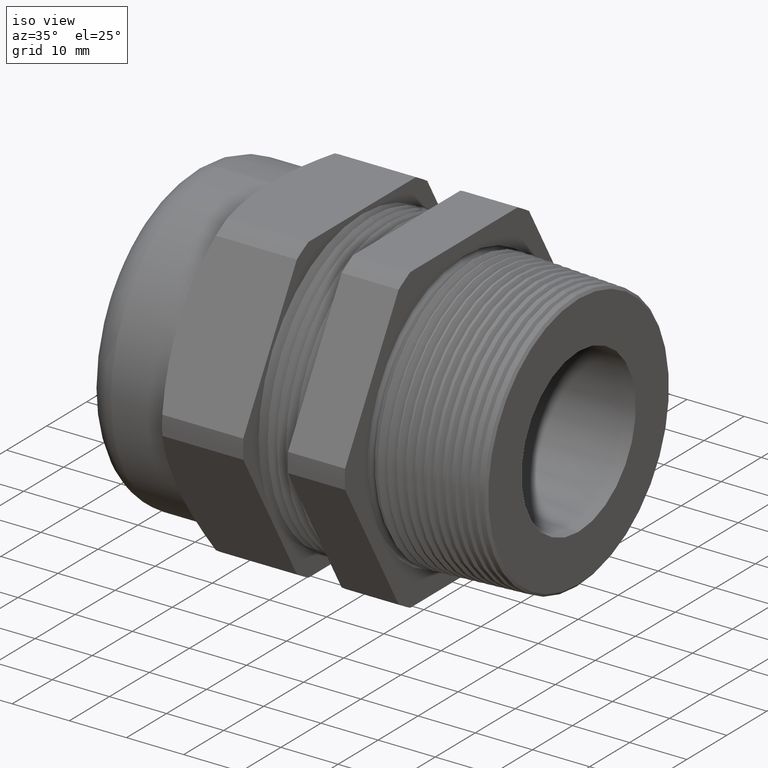
[diagram: clean part render]
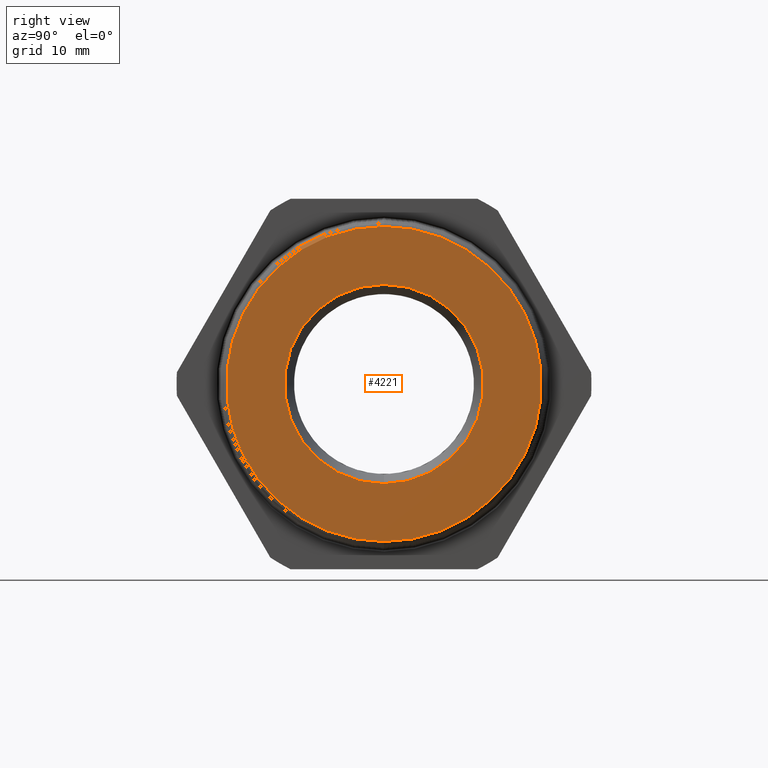
[diagram: tour spotlight — one face highlighted and labeled with its STEP entity id]
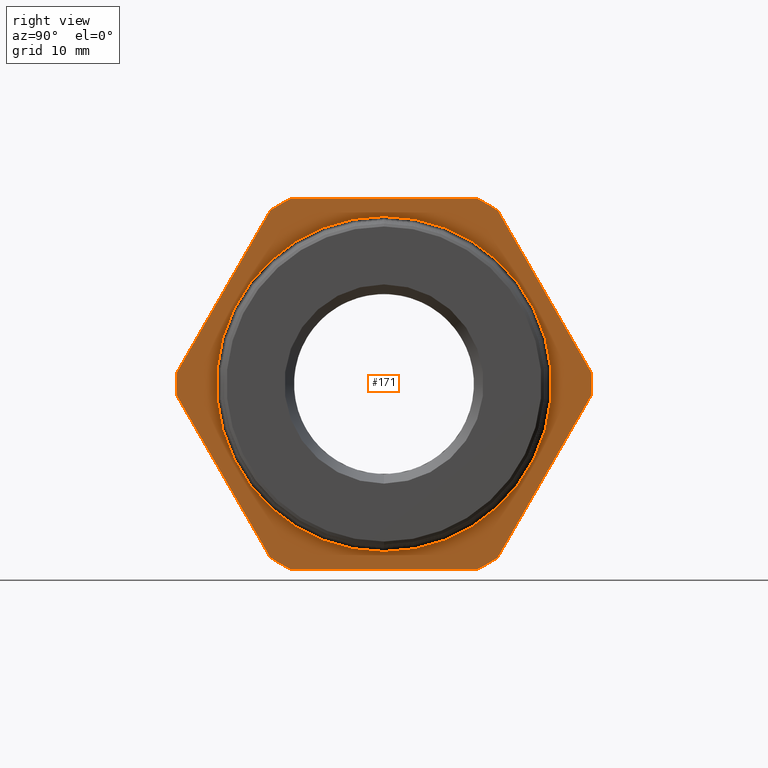
[diagram: tour spotlight — one face highlighted and labeled with its STEP entity id]
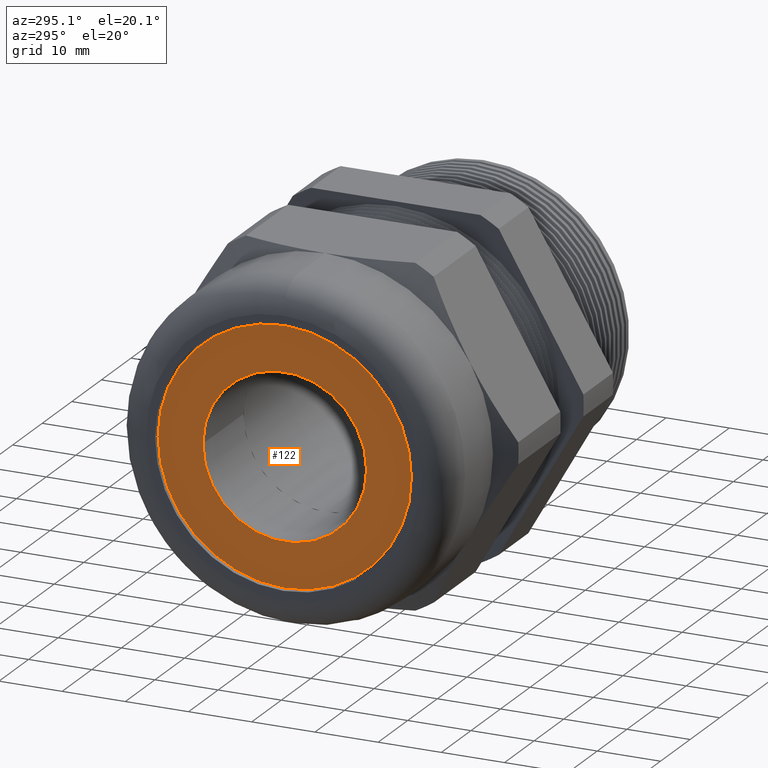
[diagram: tour spotlight — one face highlighted and labeled with its STEP entity id]
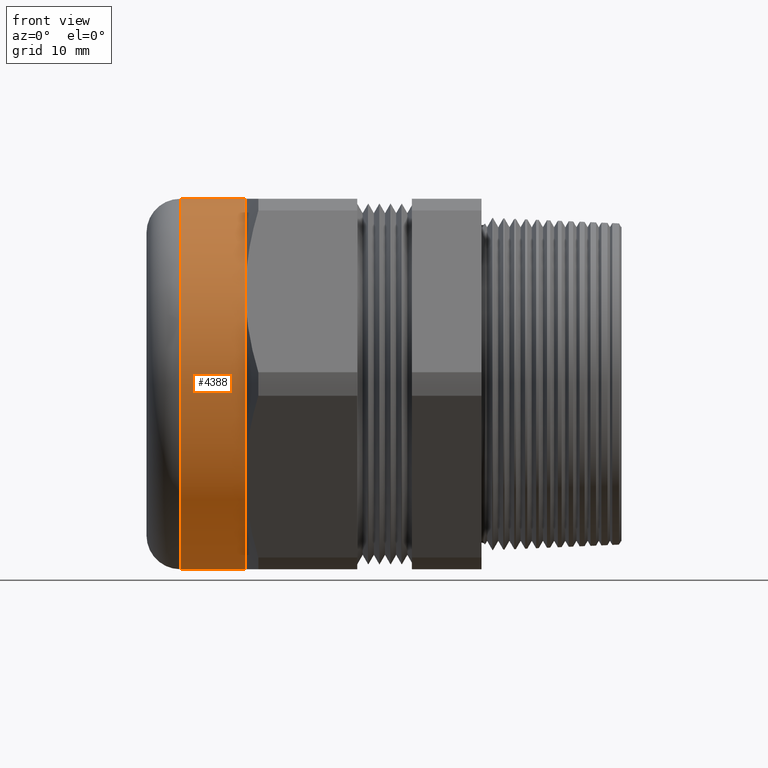
[diagram: tour spotlight — one face highlighted and labeled with its STEP entity id]
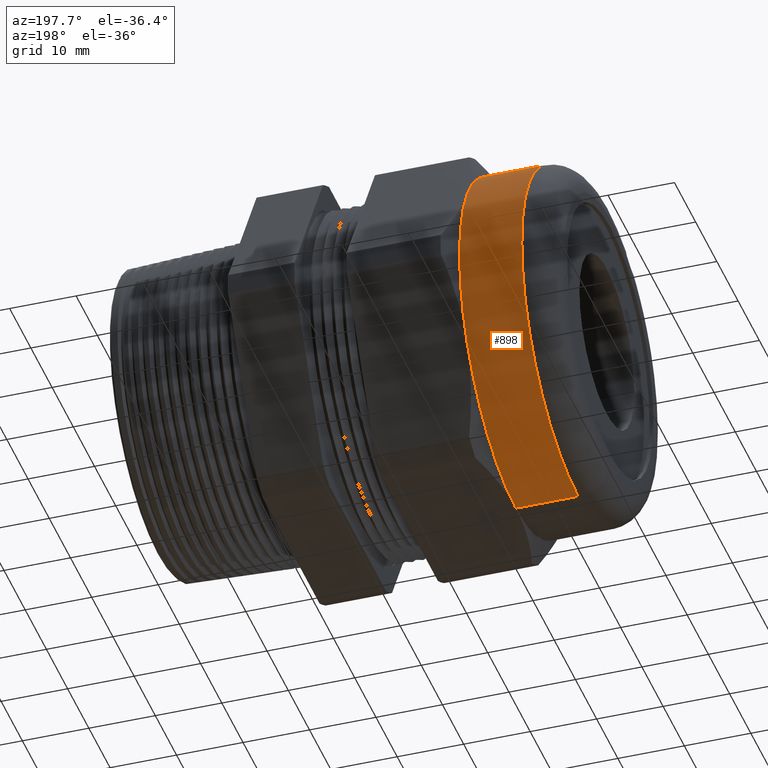
[diagram: tour spotlight — one face highlighted and labeled with its STEP entity id]
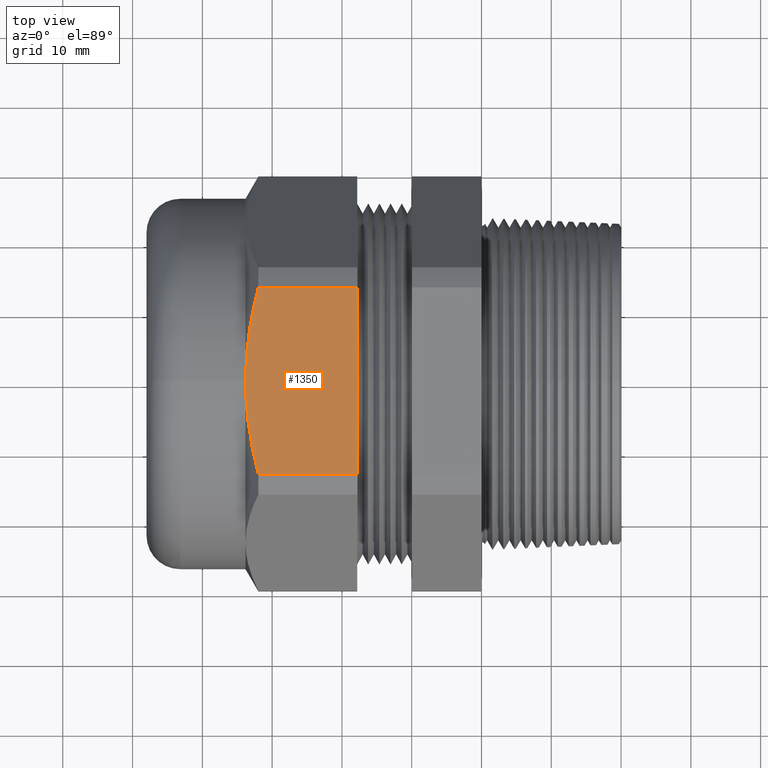
[diagram: tour spotlight — one face highlighted and labeled with its STEP entity id]
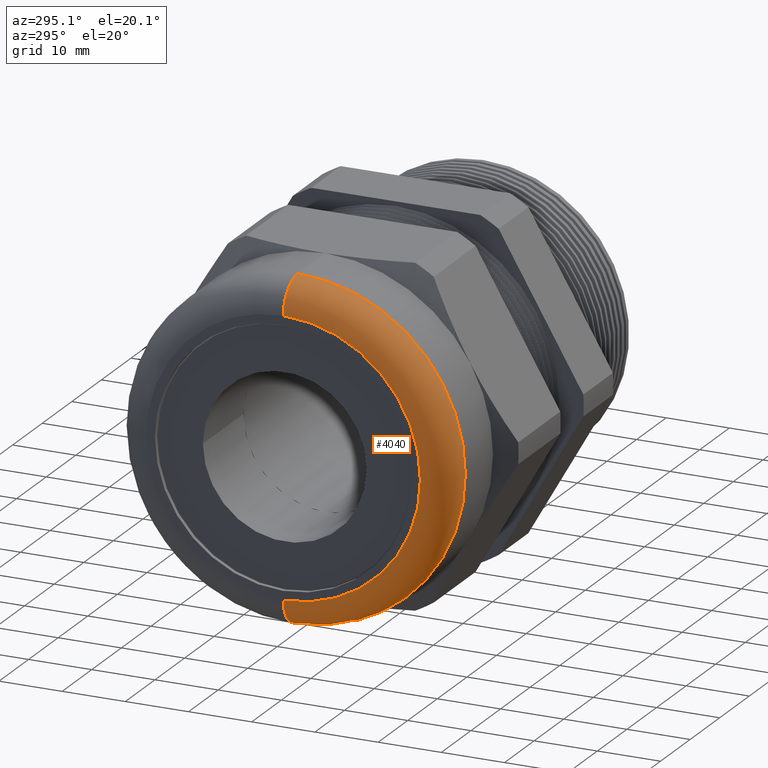
[diagram: tour spotlight — one face highlighted and labeled with its STEP entity id]
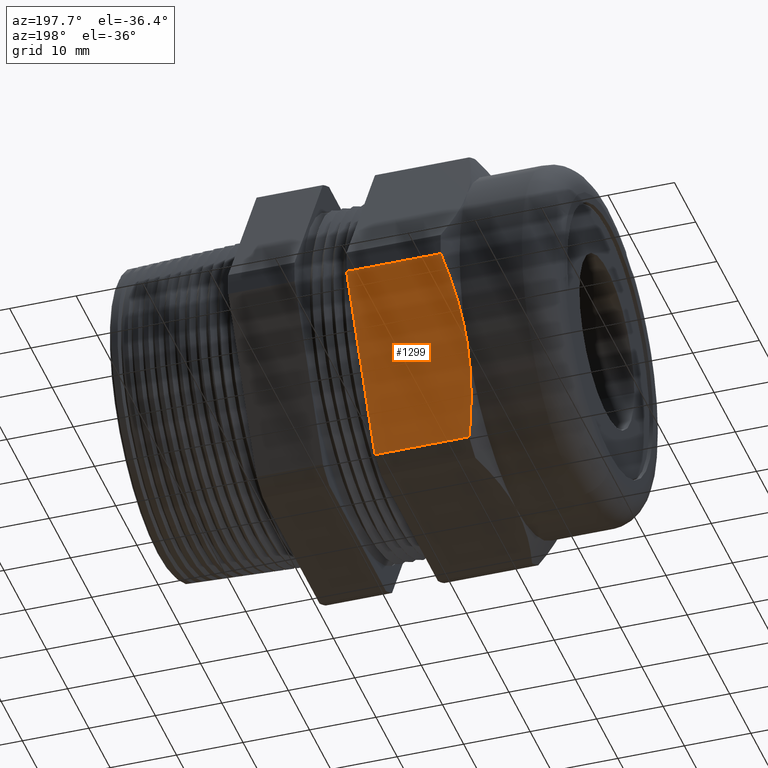
[diagram: tour spotlight — one face highlighted and labeled with its STEP entity id]
A machine part: a face-by-face anatomy tour. The part has 164 B-rep faces; the first image is the clean iso view, then the 8 largest visible faces are spotlighted one at a time (largest first), each with its STEP entity span.

Face 1 — right view, entity #4221. In plain terms, the highlighted planar face has unit normal (-1, 0, 0).
Definition (entity closure, byte-faithful):
#224 = VERTEX_POINT ( 'NONE', #738 ) ;
#226 = EDGE_CURVE ( 'NONE', #227, #224, #737, .T. ) ;
#227 = VERTEX_POINT ( 'NONE', #732 ) ;
#732 = CARTESIAN_POINT ( 'NONE',  ( 0.7899999999999998100, 0.0000000000000000000, -0.5620755975045699200 ) ) ;
#733 = DIRECTION ( 'NONE',  ( 0.0000000000000000000, 0.0000000000000000000, 1.000000000000000000 ) ) ;
#734 = DIRECTION ( 'NONE',  ( -1.000000000000000000, 0.0000000000000000000, 0.0000000000000000000 ) ) ;
#735 = CARTESIAN_POINT ( 'NONE',  ( 0.7899999999999998100, 0.0000000000000000000, 0.0000000000000000000 ) ) ;
#736 = AXIS2_PLACEMENT_3D ( 'NONE', #735, #734, #733 ) ;
#737 = CIRCLE ( 'NONE', #736, 0.5620755975045699200 ) ;
#738 = CARTESIAN_POINT ( 'NONE',  ( 0.7899999999999998100, 6.883440813628075700E-017, 0.5620755975045699200 ) ) ;
#1099 = VERTEX_POINT ( 'NONE', #2047 ) ;
#1101 = EDGE_CURVE ( 'NONE', #1099, #1102, #2046, .T. ) ;
#1102 = VERTEX_POINT ( 'NONE', #2041 ) ;
#1389 = ORIENTED_EDGE ( 'NONE', *, *, #226, .T. ) ;
#1390 = ORIENTED_EDGE ( 'NONE', *, *, #1392, .T. ) ;
#1392 = EDGE_CURVE ( 'NONE', #224, #227, #2731, .T. ) ;
#1457 = ORIENTED_EDGE ( 'NONE', *, *, #1101, .F. ) ;
#1458 = ORIENTED_EDGE ( 'NONE', *, *, #1460, .F. ) ;
#1459 = EDGE_LOOP ( 'NONE', ( #1458, #1457 ) ) ;
#1460 = EDGE_CURVE ( 'NONE', #1102, #1099, #2856, .T. ) ;
#2041 = CARTESIAN_POINT ( 'NONE',  ( 0.7900000000000000400, 0.0000000000000000000, -0.8886206974589371300 ) ) ;
#2042 = DIRECTION ( 'NONE',  ( 0.0000000000000000000, 0.0000000000000000000, 1.000000000000000000 ) ) ;
#2043 = DIRECTION ( 'NONE',  ( -1.000000000000000000, 0.0000000000000000000, 0.0000000000000000000 ) ) ;
#2044 = CARTESIAN_POINT ( 'NONE',  ( 0.7900000000000000400, 0.0000000000000000000, 0.0000000000000000000 ) ) ;
#2045 = AXIS2_PLACEMENT_3D ( 'NONE', #2044, #2043, #2042 ) ;
#2046 = CIRCLE ( 'NONE', #2045, 0.8886206974589371300 ) ;
#2047 = CARTESIAN_POINT ( 'NONE',  ( 0.7900000000000000400, 1.088246492799175700E-016, 0.8886206974589371300 ) ) ;
#2671 = CARTESIAN_POINT ( 'NONE',  ( 0.7899999999999998100, 0.0000000000000000000, 0.0000000000000000000 ) ) ;
#2728 = DIRECTION ( 'NONE',  ( 0.0000000000000000000, 0.0000000000000000000, 1.000000000000000000 ) ) ;
#2729 = DIRECTION ( 'NONE',  ( -1.000000000000000000, 0.0000000000000000000, 0.0000000000000000000 ) ) ;
#2730 = AXIS2_PLACEMENT_3D ( 'NONE', #2671, #2729, #2728 ) ;
#2731 = CIRCLE ( 'NONE', #2730, 0.5620755975045699200 ) ;
#2852 = DIRECTION ( 'NONE',  ( 0.0000000000000000000, 0.0000000000000000000, 1.000000000000000000 ) ) ;
#2853 = DIRECTION ( 'NONE',  ( -1.000000000000000000, 0.0000000000000000000, 0.0000000000000000000 ) ) ;
#2854 = CARTESIAN_POINT ( 'NONE',  ( 0.7900000000000000400, 0.0000000000000000000, 0.0000000000000000000 ) ) ;
#2855 = AXIS2_PLACEMENT_3D ( 'NONE', #2854, #2853, #2852 ) ;
#2856 = CIRCLE ( 'NONE', #2855, 0.8886206974589371300 ) ;
#3466 = DIRECTION ( 'NONE',  ( 0.0000000000000000000, 0.0000000000000000000, 1.000000000000000000 ) ) ;
#3467 = DIRECTION ( 'NONE',  ( -1.000000000000000000, 0.0000000000000000000, 0.0000000000000000000 ) ) ;
#3468 = CARTESIAN_POINT ( 'NONE',  ( 0.7900000000000000400, 0.9055078551022752700, 0.0000000000000000000 ) ) ;
#3469 = AXIS2_PLACEMENT_3D ( 'NONE', #3468, #3467, #3466 ) ;
#3470 = PLANE ( 'NONE',  #3469 ) ;
#3471 = FACE_OUTER_BOUND ( 'NONE', #1459, .T. ) ;
#3472 = FACE_BOUND ( 'NONE', #4222, .T. ) ;
#4221 = ADVANCED_FACE ( 'NONE', ( #3472, #3471 ), #3470, .F. ) ;
#4222 = EDGE_LOOP ( 'NONE', ( #1389, #1390 ) ) ;

Face 2 — right view, entity #171. In plain terms, the highlighted planar face has unit normal (-1, 0, 0).
Definition (entity closure, byte-faithful):
#156 = ORIENTED_EDGE ( 'NONE', *, *, #160, .T. ) ;
#160 = EDGE_CURVE ( 'NONE', #163, #4138, #611, .T. ) ;
#161 = EDGE_LOOP ( 'NONE', ( #156, #4142, #4133, #4119, #4111, #4162, #4169, #4171, #4151, #4145, #4203, #4188 ) ) ;
#163 = VERTEX_POINT ( 'NONE', #601 ) ;
#171 = ADVANCED_FACE ( 'NONE', ( #655, #654 ), #653, .F. ) ;
#601 = CARTESIAN_POINT ( 'NONE',  ( 0.0000000000000000000, -1.168535519404734900, -0.06603710994211120500 ) ) ;
#608 = DIRECTION ( 'NONE',  ( 0.0000000000000000000, 0.5000000000000001100, -0.8660254037844386000 ) ) ;
#609 = VECTOR ( 'NONE', #608, 39.37007874015748900 ) ;
#610 = CARTESIAN_POINT ( 'NONE',  ( 0.0000000000000000000, -1.168535519404734900, -0.06603710994211120500 ) ) ;
#611 = LINE ( 'NONE', #610, #609 ) ;
#649 = DIRECTION ( 'NONE',  ( 0.0000000000000000000, 0.0000000000000000000, 1.000000000000000000 ) ) ;
#650 = DIRECTION ( 'NONE',  ( -1.000000000000000000, 0.0000000000000000000, 0.0000000000000000000 ) ) ;
#651 = CARTESIAN_POINT ( 'NONE',  ( 0.0000000000000000000, 1.170400000000000100, 0.0000000000000000000 ) ) ;
#652 = AXIS2_PLACEMENT_3D ( 'NONE', #651, #650, #649 ) ;
#653 = PLANE ( 'NONE',  #652 ) ;
#654 = FACE_BOUND ( 'NONE', #4176, .T. ) ;
#655 = FACE_OUTER_BOUND ( 'NONE', #161, .T. ) ;
#1089 = VERTEX_POINT ( 'NONE', #2011 ) ;
#1095 = VERTEX_POINT ( 'NONE', #2052 ) ;
#1114 = EDGE_CURVE ( 'NONE', #1095, #1089, #2087, .T. ) ;
#2011 = CARTESIAN_POINT ( 'NONE',  ( 0.0000000000000000000, 0.0000000000000000000, -0.9449999999999997300 ) ) ;
#2052 = CARTESIAN_POINT ( 'NONE',  ( 0.0000000000000000000, 1.157291225194248600E-016, 0.9449999999999997300 ) ) ;
#2083 = DIRECTION ( 'NONE',  ( 0.0000000000000000000, 0.0000000000000000000, 1.000000000000000000 ) ) ;
#2084 = DIRECTION ( 'NONE',  ( 1.000000000000000000, 0.0000000000000000000, 0.0000000000000000000 ) ) ;
#2085 = CARTESIAN_POINT ( 'NONE',  ( 0.0000000000000000000, 0.0000000000000000000, 0.0000000000000000000 ) ) ;
#2086 = AXIS2_PLACEMENT_3D ( 'NONE', #2085, #2084, #2083 ) ;
#2087 = CIRCLE ( 'NONE', #2086, 0.9449999999999997300 ) ;
#3252 = AXIS2_PLACEMENT_3D ( 'NONE', #3259, #3317, #3316 ) ;
#3253 = CIRCLE ( 'NONE', #3252, 1.170400000000000100 ) ;
#3259 = CARTESIAN_POINT ( 'NONE',  ( 0.0000000000000000000, 0.0000000000000000000, 0.0000000000000000000 ) ) ;
#3261 = DIRECTION ( 'NONE',  ( 0.0000000000000000000, 0.4999999999999998300, 0.8660254037844386000 ) ) ;
#3263 = VECTOR ( 'NONE', #3261, 39.37007874015748900 ) ;
#3264 = CARTESIAN_POINT ( 'NONE',  ( 0.0000000000000000000, 0.6414575745047416100, -0.9789628900578888300 ) ) ;
#3265 = LINE ( 'NONE', #3264, #3263 ) ;
#3272 = CARTESIAN_POINT ( 'NONE',  ( 0.0000000000000000000, 0.6414575745047416100, -0.9789628900578888300 ) ) ;
#3277 = CARTESIAN_POINT ( 'NONE',  ( 0.0000000000000000000, 1.168535519404735100, -0.06603710994211078900 ) ) ;
#3288 = CARTESIAN_POINT ( 'NONE',  ( 0.0000000000000000000, -0.6414575745047412800, -0.9789628900578889500 ) ) ;
#3289 = DIRECTION ( 'NONE',  ( 0.0000000000000000000, 0.0000000000000000000, 1.000000000000000000 ) ) ;
#3290 = DIRECTION ( 'NONE',  ( -1.000000000000000000, 0.0000000000000000000, 0.0000000000000000000 ) ) ;
#3291 = CARTESIAN_POINT ( 'NONE',  ( 0.0000000000000000000, 0.0000000000000000000, 0.0000000000000000000 ) ) ;
#3292 = AXIS2_PLACEMENT_3D ( 'NONE', #3291, #3290, #3289 ) ;
#3293 = CIRCLE ( 'NONE', #3292, 1.170400000000000100 ) ;
#3294 = DIRECTION ( 'NONE',  ( 0.0000000000000000000, 0.0000000000000000000, 1.000000000000000000 ) ) ;
#3295 = DIRECTION ( 'NONE',  ( -1.000000000000000000, 0.0000000000000000000, 0.0000000000000000000 ) ) ;
#3296 = CARTESIAN_POINT ( 'NONE',  ( 0.0000000000000000000, 0.0000000000000000000, 0.0000000000000000000 ) ) ;
#3297 = AXIS2_PLACEMENT_3D ( 'NONE', #3296, #3295, #3294 ) ;
#3298 = CIRCLE ( 'NONE', #3297, 1.170400000000000100 ) ;
#3299 = CARTESIAN_POINT ( 'NONE',  ( 0.0000000000000000000, -0.5270779448999944900, -1.044999999999999300 ) ) ;
#3311 = CARTESIAN_POINT ( 'NONE',  ( 0.0000000000000000000, 0.5270779448999938200, -1.044999999999999700 ) ) ;
#3312 = DIRECTION ( 'NONE',  ( 0.0000000000000000000, 1.000000000000000000, 0.0000000000000000000 ) ) ;
#3313 = VECTOR ( 'NONE', #3312, 39.37007874015748100 ) ;
#3314 = CARTESIAN_POINT ( 'NONE',  ( 0.0000000000000000000, -0.5270779448999938200, -1.044999999999999700 ) ) ;
#3315 = LINE ( 'NONE', #3314, #3313 ) ;
#3316 = DIRECTION ( 'NONE',  ( 0.0000000000000000000, 0.0000000000000000000, 1.000000000000000000 ) ) ;
#3317 = DIRECTION ( 'NONE',  ( -1.000000000000000000, 0.0000000000000000000, 0.0000000000000000000 ) ) ;
#3318 = DIRECTION ( 'NONE',  ( -1.000000000000000000, 0.0000000000000000000, 0.0000000000000000000 ) ) ;
#3319 = AXIS2_PLACEMENT_3D ( 'NONE', #3325, #3318, #3382 ) ;
#3320 = CIRCLE ( 'NONE', #3319, 1.170400000000000100 ) ;
#3325 = CARTESIAN_POINT ( 'NONE',  ( 0.0000000000000000000, 0.0000000000000000000, 0.0000000000000000000 ) ) ;
#3329 = DIRECTION ( 'NONE',  ( 0.0000000000000000000, 0.0000000000000000000, 1.000000000000000000 ) ) ;
#3330 = DIRECTION ( 'NONE',  ( 1.000000000000000000, 0.0000000000000000000, 0.0000000000000000000 ) ) ;
#3331 = CARTESIAN_POINT ( 'NONE',  ( 0.0000000000000000000, 0.0000000000000000000, 0.0000000000000000000 ) ) ;
#3332 = AXIS2_PLACEMENT_3D ( 'NONE', #3331, #3330, #3329 ) ;
#3333 = CIRCLE ( 'NONE', #3332, 0.9449999999999997300 ) ;
#3334 = DIRECTION ( 'NONE',  ( 0.0000000000000000000, -1.000000000000000000, 0.0000000000000000000 ) ) ;
#3335 = VECTOR ( 'NONE', #3334, 39.37007874015748100 ) ;
#3336 = CARTESIAN_POINT ( 'NONE',  ( 0.0000000000000000000, 0.5270779448999936000, 1.044999999999999900 ) ) ;
#3337 = LINE ( 'NONE', #3336, #3335 ) ;
#3343 = CARTESIAN_POINT ( 'NONE',  ( 0.0000000000000000000, -0.5270779448999936000, 1.044999999999999900 ) ) ;
#3344 = CARTESIAN_POINT ( 'NONE',  ( 0.0000000000000000000, -0.6414575745047412800, 0.9789628900578891700 ) ) ;
#3349 = CARTESIAN_POINT ( 'NONE',  ( 0.0000000000000000000, -1.168535519404734900, 0.06603710994211099700 ) ) ;
#3354 = DIRECTION ( 'NONE',  ( 0.0000000000000000000, 0.0000000000000000000, 1.000000000000000000 ) ) ;
#3355 = DIRECTION ( 'NONE',  ( -1.000000000000000000, 0.0000000000000000000, 0.0000000000000000000 ) ) ;
#3356 = CARTESIAN_POINT ( 'NONE',  ( 0.0000000000000000000, 0.0000000000000000000, 0.0000000000000000000 ) ) ;
#3357 = AXIS2_PLACEMENT_3D ( 'NONE', #3356, #3355, #3354 ) ;
#3362 = CIRCLE ( 'NONE', #3357, 1.170400000000000100 ) ;
#3365 = CARTESIAN_POINT ( 'NONE',  ( 0.0000000000000000000, 0.5270779448999933800, 1.044999999999999900 ) ) ;
#3366 = CARTESIAN_POINT ( 'NONE',  ( 0.0000000000000000000, 0.6414575745047415000, 0.9789628900578888300 ) ) ;
#3367 = DIRECTION ( 'NONE',  ( 0.0000000000000000000, -0.5000000000000000000, 0.8660254037844386000 ) ) ;
#3368 = VECTOR ( 'NONE', #3367, 39.37007874015748900 ) ;
#3369 = CARTESIAN_POINT ( 'NONE',  ( 0.0000000000000000000, 1.168535519404734900, 0.06603710994211099700 ) ) ;
#3370 = LINE ( 'NONE', #3369, #3368 ) ;
#3372 = DIRECTION ( 'NONE',  ( 0.0000000000000000000, 0.0000000000000000000, 1.000000000000000000 ) ) ;
#3373 = DIRECTION ( 'NONE',  ( -1.000000000000000000, 0.0000000000000000000, 0.0000000000000000000 ) ) ;
#3374 = CARTESIAN_POINT ( 'NONE',  ( 0.0000000000000000000, 0.0000000000000000000, 0.0000000000000000000 ) ) ;
#3375 = AXIS2_PLACEMENT_3D ( 'NONE', #3374, #3373, #3372 ) ;
#3376 = CIRCLE ( 'NONE', #3375, 1.170400000000000100 ) ;
#3382 = DIRECTION ( 'NONE',  ( 0.0000000000000000000, 0.0000000000000000000, 1.000000000000000000 ) ) ;
#3437 = DIRECTION ( 'NONE',  ( 0.0000000000000000000, -0.5000000000000000000, -0.8660254037844386000 ) ) ;
#3438 = VECTOR ( 'NONE', #3437, 39.37007874015748900 ) ;
#3439 = CARTESIAN_POINT ( 'NONE',  ( 0.0000000000000000000, -0.6414575745047415000, 0.9789628900578888300 ) ) ;
#3440 = LINE ( 'NONE', #3439, #3438 ) ;
#3516 = CARTESIAN_POINT ( 'NONE',  ( 0.0000000000000000000, 1.168535519404735100, 0.06603710994211087200 ) ) ;
#4106 = VERTEX_POINT ( 'NONE', #3277 ) ;
#4108 = VERTEX_POINT ( 'NONE', #3272 ) ;
#4111 = ORIENTED_EDGE ( 'NONE', *, *, #4115, .T. ) ;
#4115 = EDGE_CURVE ( 'NONE', #4108, #4106, #3265, .T. ) ;
#4119 = ORIENTED_EDGE ( 'NONE', *, *, #4123, .F. ) ;
#4123 = EDGE_CURVE ( 'NONE', #4108, #4125, #3253, .T. ) ;
#4124 = EDGE_CURVE ( 'NONE', #4128, #4125, #3315, .T. ) ;
#4125 = VERTEX_POINT ( 'NONE', #3311 ) ;
#4128 = VERTEX_POINT ( 'NONE', #3299 ) ;
#4133 = ORIENTED_EDGE ( 'NONE', *, *, #4124, .T. ) ;
#4134 = EDGE_CURVE ( 'NONE', #4141, #4143, #3298, .T. ) ;
#4137 = EDGE_CURVE ( 'NONE', #4128, #4138, #3293, .T. ) ;
#4138 = VERTEX_POINT ( 'NONE', #3288 ) ;
#4140 = VERTEX_POINT ( 'NONE', #3349 ) ;
#4141 = VERTEX_POINT ( 'NONE', #3344 ) ;
#4142 = ORIENTED_EDGE ( 'NONE', *, *, #4137, .F. ) ;
#4143 = VERTEX_POINT ( 'NONE', #3343 ) ;
#4145 = ORIENTED_EDGE ( 'NONE', *, *, #4134, .F. ) ;
#4148 = EDGE_CURVE ( 'NONE', #4173, #4143, #3337, .T. ) ;
#4151 = ORIENTED_EDGE ( 'NONE', *, *, #4148, .T. ) ;
#4157 = EDGE_CURVE ( 'NONE', #1089, #1095, #3333, .T. ) ;
#4160 = ORIENTED_EDGE ( 'NONE', *, *, #1114, .F. ) ;
#4162 = ORIENTED_EDGE ( 'NONE', *, *, #4164, .F. ) ;
#4164 = EDGE_CURVE ( 'NONE', #4271, #4106, #3320, .T. ) ;
#4166 = EDGE_CURVE ( 'NONE', #4173, #4170, #3376, .T. ) ;
#4168 = EDGE_CURVE ( 'NONE', #4271, #4170, #3370, .T. ) ;
#4169 = ORIENTED_EDGE ( 'NONE', *, *, #4168, .T. ) ;
#4170 = VERTEX_POINT ( 'NONE', #3366 ) ;
#4171 = ORIENTED_EDGE ( 'NONE', *, *, #4166, .F. ) ;
#4172 = ORIENTED_EDGE ( 'NONE', *, *, #4157, .F. ) ;
#4173 = VERTEX_POINT ( 'NONE', #3365 ) ;
#4176 = EDGE_LOOP ( 'NONE', ( #4172, #4160 ) ) ;
#4184 = EDGE_CURVE ( 'NONE', #163, #4140, #3362, .T. ) ;
#4188 = ORIENTED_EDGE ( 'NONE', *, *, #4184, .F. ) ;
#4203 = ORIENTED_EDGE ( 'NONE', *, *, #4206, .T. ) ;
#4206 = EDGE_CURVE ( 'NONE', #4141, #4140, #3440, .T. ) ;
#4271 = VERTEX_POINT ( 'NONE', #3516 ) ;

Face 3 — auxiliary view, entity #122. In plain terms, the highlighted planar face has unit normal (-1, -0, 0).
Definition (entity closure, byte-faithful):
#2 = VERTEX_POINT ( 'NONE', #906 ) ;
#3 = VERTEX_POINT ( 'NONE', #907 ) ;
#4 = EDGE_CURVE ( 'NONE', #2, #3, #374, .T. ) ;
#8 = EDGE_CURVE ( 'NONE', #3, #2, #369, .T. ) ;
#122 = ADVANCED_FACE ( 'NONE', ( #556, #555 ), #554, .T. ) ;
#365 = DIRECTION ( 'NONE',  ( 0.0000000000000000000, 1.000000000000000000, 0.0000000000000000000 ) ) ;
#366 = DIRECTION ( 'NONE',  ( 1.000000000000000000, 1.214306433183765200E-016, 0.0000000000000000000 ) ) ;
#367 = CARTESIAN_POINT ( 'NONE',  ( -1.869999999999999700, -2.727897680031288600E-016, 0.0000000000000000000 ) ) ;
#368 = AXIS2_PLACEMENT_3D ( 'NONE', #367, #366, #365 ) ;
#369 = CIRCLE ( 'NONE', #368, 0.5100000000000002300 ) ;
#370 = DIRECTION ( 'NONE',  ( 0.0000000000000000000, 1.000000000000000000, 0.0000000000000000000 ) ) ;
#371 = DIRECTION ( 'NONE',  ( 1.000000000000000000, 1.214306433183765200E-016, 0.0000000000000000000 ) ) ;
#372 = CARTESIAN_POINT ( 'NONE',  ( -1.869999999999999700, -2.727897680031288600E-016, 0.0000000000000000000 ) ) ;
#373 = AXIS2_PLACEMENT_3D ( 'NONE', #372, #371, #370 ) ;
#374 = CIRCLE ( 'NONE', #373, 0.5100000000000002300 ) ;
#550 = DIRECTION ( 'NONE',  ( 1.214306433183765200E-016, -1.000000000000000000, 0.0000000000000000000 ) ) ;
#551 = DIRECTION ( 'NONE',  ( -1.000000000000000000, -1.214306433183765200E-016, 0.0000000000000000000 ) ) ;
#552 = CARTESIAN_POINT ( 'NONE',  ( -1.869999999999999700, 0.7989999999999998200, 0.0000000000000000000 ) ) ;
#553 = AXIS2_PLACEMENT_3D ( 'NONE', #552, #551, #550 ) ;
#554 = PLANE ( 'NONE',  #553 ) ;
#555 = FACE_BOUND ( 'NONE', #2337, .T. ) ;
#556 = FACE_OUTER_BOUND ( 'NONE', #3227, .T. ) ;
#906 = CARTESIAN_POINT ( 'NONE',  ( -1.869999999999999700, -0.5100000000000005600, 6.245698675651506000E-017 ) ) ;
#907 = CARTESIAN_POINT ( 'NONE',  ( -1.869999999999999700, 0.5100000000000000100, 0.0000000000000000000 ) ) ;
#1324 = VERTEX_POINT ( 'NONE', #2527 ) ;
#1325 = VERTEX_POINT ( 'NONE', #2526 ) ;
#1327 = EDGE_CURVE ( 'NONE', #1325, #1324, #2524, .T. ) ;
#1681 = ORIENTED_EDGE ( 'NONE', *, *, #4, .T. ) ;
#2133 = ORIENTED_EDGE ( 'NONE', *, *, #8, .T. ) ;
#2179 = ORIENTED_EDGE ( 'NONE', *, *, #1327, .T. ) ;
#2223 = ORIENTED_EDGE ( 'NONE', *, *, #2278, .T. ) ;
#2278 = EDGE_CURVE ( 'NONE', #1324, #1325, #3109, .T. ) ;
#2337 = EDGE_LOOP ( 'NONE', ( #2133, #1681 ) ) ;
#2520 = DIRECTION ( 'NONE',  ( 0.0000000000000000000, -1.000000000000000000, 0.0000000000000000000 ) ) ;
#2521 = DIRECTION ( 'NONE',  ( -1.000000000000000000, -1.214306433183765200E-016, 0.0000000000000000000 ) ) ;
#2522 = CARTESIAN_POINT ( 'NONE',  ( -1.869999999999999700, -2.727897680031288100E-016, 0.0000000000000000000 ) ) ;
#2523 = AXIS2_PLACEMENT_3D ( 'NONE', #2522, #2521, #2520 ) ;
#2524 = CIRCLE ( 'NONE', #2523, 0.7890000000000001500 ) ;
#2526 = CARTESIAN_POINT ( 'NONE',  ( -1.869999999999999700, -0.7890000000000003700, 0.0000000000000000000 ) ) ;
#2527 = CARTESIAN_POINT ( 'NONE',  ( -1.869999999999999700, 0.7889999999999998100, 9.723695585229986400E-017 ) ) ;
#3105 = DIRECTION ( 'NONE',  ( 0.0000000000000000000, -1.000000000000000000, 0.0000000000000000000 ) ) ;
#3106 = DIRECTION ( 'NONE',  ( -1.000000000000000000, -1.214306433183765200E-016, 0.0000000000000000000 ) ) ;
#3107 = CARTESIAN_POINT ( 'NONE',  ( -1.869999999999999700, -2.727897680031288100E-016, 0.0000000000000000000 ) ) ;
#3108 = AXIS2_PLACEMENT_3D ( 'NONE', #3107, #3106, #3105 ) ;
#3109 = CIRCLE ( 'NONE', #3108, 0.7890000000000001500 ) ;
#3227 = EDGE_LOOP ( 'NONE', ( #2179, #2223 ) ) ;

Face 4 — front view, entity #4388. In plain terms, the highlighted cylindrical surface (partial cylindrical patch) has radius 26.543 mm, axis along (-1, 0, 0).
Definition (entity closure, byte-faithful):
#881 = VERTEX_POINT ( 'NONE', #1717 ) ;
#891 = EDGE_CURVE ( 'NONE', #881, #4088, #1765, .T. ) ;
#892 = EDGE_CURVE ( 'NONE', #893, #4101, #1761, .T. ) ;
#893 = VERTEX_POINT ( 'NONE', #1757 ) ;
#988 = ORIENTED_EDGE ( 'NONE', *, *, #4433, .T. ) ;
#1360 = VERTEX_POINT ( 'NONE', #2630 ) ;
#1364 = VERTEX_POINT ( 'NONE', #2619 ) ;
#1717 = CARTESIAN_POINT ( 'NONE',  ( -1.331250000000000300, 0.0000000000000000000, 1.045000000000000400 ) ) ;
#1757 = CARTESIAN_POINT ( 'NONE',  ( -1.331250000000000300, 0.0000000000000000000, -1.045000000000000400 ) ) ;
#1758 = DIRECTION ( 'NONE',  ( -1.000000000000000000, 0.0000000000000000000, 0.0000000000000000000 ) ) ;
#1759 = VECTOR ( 'NONE', #1758, 39.37007874015748100 ) ;
#1760 = CARTESIAN_POINT ( 'NONE',  ( -0.7238591030180623300, 1.279755905108984100E-016, -1.044999999999999900 ) ) ;
#1761 = LINE ( 'NONE', #1760, #1759 ) ;
#1762 = DIRECTION ( 'NONE',  ( -1.000000000000000000, 0.0000000000000000000, 0.0000000000000000000 ) ) ;
#1763 = VECTOR ( 'NONE', #1762, 39.37007874015748100 ) ;
#1764 = CARTESIAN_POINT ( 'NONE',  ( -0.7238591030180623300, 0.0000000000000000000, 1.044999999999999900 ) ) ;
#1765 = LINE ( 'NONE', #1764, #1763 ) ;
#2619 = CARTESIAN_POINT ( 'NONE',  ( -1.331250000000000300, -0.9049965469547383000, -0.5225000000000006300 ) ) ;
#2630 = CARTESIAN_POINT ( 'NONE',  ( -1.331250000000000300, -0.9049965469547387500, 0.5224999999999998500 ) ) ;
#3242 = CARTESIAN_POINT ( 'NONE',  ( -1.699599999999999600, 0.0000000000000000000, 1.044999999999999900 ) ) ;
#3285 = CARTESIAN_POINT ( 'NONE',  ( -1.699599999999999600, 1.279755905108984100E-016, -1.044999999999999900 ) ) ;
#3733 = FACE_OUTER_BOUND ( 'NONE', #4372, .T. ) ;
#3786 = DIRECTION ( 'NONE',  ( 0.0000000000000000000, 0.0000000000000000000, 1.000000000000000000 ) ) ;
#3787 = DIRECTION ( 'NONE',  ( -1.000000000000000000, 0.0000000000000000000, 0.0000000000000000000 ) ) ;
#3788 = CARTESIAN_POINT ( 'NONE',  ( -0.7238591030180623300, 0.0000000000000000000, 0.0000000000000000000 ) ) ;
#3789 = AXIS2_PLACEMENT_3D ( 'NONE', #3788, #3787, #3786 ) ;
#3790 = CYLINDRICAL_SURFACE ( 'NONE', #3789, 1.044999999999999900 ) ;
#3824 = DIRECTION ( 'NONE',  ( 0.0000000000000000000, 0.0000000000000000000, 1.000000000000000000 ) ) ;
#3825 = DIRECTION ( 'NONE',  ( -1.000000000000000000, 0.0000000000000000000, 0.0000000000000000000 ) ) ;
#3826 = CARTESIAN_POINT ( 'NONE',  ( -1.331250000000000300, 0.0000000000000000000, 0.0000000000000000000 ) ) ;
#3827 = AXIS2_PLACEMENT_3D ( 'NONE', #3826, #3825, #3824 ) ;
#3828 = CIRCLE ( 'NONE', #3827, 1.044999999999999900 ) ;
#3829 = DIRECTION ( 'NONE',  ( 0.0000000000000000000, 0.0000000000000000000, 1.000000000000000000 ) ) ;
#3830 = DIRECTION ( 'NONE',  ( -1.000000000000000000, 0.0000000000000000000, 0.0000000000000000000 ) ) ;
#3831 = CARTESIAN_POINT ( 'NONE',  ( -1.331250000000000300, 0.0000000000000000000, 0.0000000000000000000 ) ) ;
#3832 = AXIS2_PLACEMENT_3D ( 'NONE', #3831, #3830, #3829 ) ;
#3833 = CIRCLE ( 'NONE', #3832, 1.044999999999999900 ) ;
#3834 = DIRECTION ( 'NONE',  ( 0.0000000000000000000, 0.0000000000000000000, 1.000000000000000000 ) ) ;
#3835 = DIRECTION ( 'NONE',  ( -1.000000000000000000, 0.0000000000000000000, 0.0000000000000000000 ) ) ;
#3836 = CARTESIAN_POINT ( 'NONE',  ( -1.331250000000000300, 0.0000000000000000000, 0.0000000000000000000 ) ) ;
#3837 = AXIS2_PLACEMENT_3D ( 'NONE', #3836, #3835, #3834 ) ;
#3838 = CIRCLE ( 'NONE', #3837, 1.044999999999999900 ) ;
#3839 = DIRECTION ( 'NONE',  ( 0.0000000000000000000, 0.0000000000000000000, -1.000000000000000000 ) ) ;
#3840 = DIRECTION ( 'NONE',  ( 1.000000000000000000, 0.0000000000000000000, 0.0000000000000000000 ) ) ;
#3841 = AXIS2_PLACEMENT_3D ( 'NONE', #3847, #3840, #3839 ) ;
#3842 = CIRCLE ( 'NONE', #3841, 1.044999999999999900 ) ;
#3847 = CARTESIAN_POINT ( 'NONE',  ( -1.699599999999999600, 0.0000000000000000000, 0.0000000000000000000 ) ) ;
#4088 = VERTEX_POINT ( 'NONE', #3242 ) ;
#4101 = VERTEX_POINT ( 'NONE', #3285 ) ;
#4372 = EDGE_LOOP ( 'NONE', ( #4439, #988, #4431, #4432, #4422, #4427 ) ) ;
#4388 = ADVANCED_FACE ( 'NONE', ( #3733 ), #3790, .T. ) ;
#4422 = ORIENTED_EDGE ( 'NONE', *, *, #891, .T. ) ;
#4427 = ORIENTED_EDGE ( 'NONE', *, *, #4429, .T. ) ;
#4429 = EDGE_CURVE ( 'NONE', #4088, #4101, #3842, .T. ) ;
#4431 = ORIENTED_EDGE ( 'NONE', *, *, #4435, .T. ) ;
#4432 = ORIENTED_EDGE ( 'NONE', *, *, #4436, .T. ) ;
#4433 = EDGE_CURVE ( 'NONE', #893, #1364, #3838, .T. ) ;
#4435 = EDGE_CURVE ( 'NONE', #1364, #1360, #3833, .T. ) ;
#4436 = EDGE_CURVE ( 'NONE', #1360, #881, #3828, .T. ) ;
#4439 = ORIENTED_EDGE ( 'NONE', *, *, #892, .F. ) ;

Face 5 — auxiliary view, entity #898. In plain terms, the highlighted cylindrical surface (partial cylindrical patch) has radius 26.543 mm, axis along (-1, 0, 0).
Definition (entity closure, byte-faithful):
#881 = VERTEX_POINT ( 'NONE', #1717 ) ;
#882 = ORIENTED_EDGE ( 'NONE', *, *, #889, .T. ) ;
#883 = ORIENTED_EDGE ( 'NONE', *, *, #902, .T. ) ;
#884 = ORIENTED_EDGE ( 'NONE', *, *, #892, .T. ) ;
#886 = ORIENTED_EDGE ( 'NONE', *, *, #888, .T. ) ;
#887 = VERTEX_POINT ( 'NONE', #1714 ) ;
#888 = EDGE_CURVE ( 'NONE', #887, #894, #1775, .T. ) ;
#889 = EDGE_CURVE ( 'NONE', #881, #887, #1770, .T. ) ;
#890 = ORIENTED_EDGE ( 'NONE', *, *, #891, .F. ) ;
#891 = EDGE_CURVE ( 'NONE', #881, #4088, #1765, .T. ) ;
#892 = EDGE_CURVE ( 'NONE', #893, #4101, #1761, .T. ) ;
#893 = VERTEX_POINT ( 'NONE', #1757 ) ;
#894 = VERTEX_POINT ( 'NONE', #1756 ) ;
#895 = ORIENTED_EDGE ( 'NONE', *, *, #896, .T. ) ;
#896 = EDGE_CURVE ( 'NONE', #894, #893, #1755, .T. ) ;
#897 = EDGE_LOOP ( 'NONE', ( #895, #884, #883, #890, #882, #886 ) ) ;
#898 = ADVANCED_FACE ( 'NONE', ( #1750 ), #1747, .T. ) ;
#902 = EDGE_CURVE ( 'NONE', #4101, #4088, #1803, .T. ) ;
#1714 = CARTESIAN_POINT ( 'NONE',  ( -1.331250000000000300, 0.9049965469547385200, 0.5225000000000005200 ) ) ;
#1717 = CARTESIAN_POINT ( 'NONE',  ( -1.331250000000000300, 0.0000000000000000000, 1.045000000000000400 ) ) ;
#1747 = CYLINDRICAL_SURFACE ( 'NONE', #1749, 1.044999999999999900 ) ;
#1749 = AXIS2_PLACEMENT_3D ( 'NONE', #1812, #1811, #1809 ) ;
#1750 = FACE_OUTER_BOUND ( 'NONE', #897, .T. ) ;
#1751 = DIRECTION ( 'NONE',  ( 0.0000000000000000000, 0.0000000000000000000, 1.000000000000000000 ) ) ;
#1752 = DIRECTION ( 'NONE',  ( -1.000000000000000000, 0.0000000000000000000, 0.0000000000000000000 ) ) ;
#1753 = CARTESIAN_POINT ( 'NONE',  ( -1.331250000000000300, 0.0000000000000000000, 0.0000000000000000000 ) ) ;
#1754 = AXIS2_PLACEMENT_3D ( 'NONE', #1753, #1752, #1751 ) ;
#1755 = CIRCLE ( 'NONE', #1754, 1.044999999999999900 ) ;
#1756 = CARTESIAN_POINT ( 'NONE',  ( -1.331250000000000300, 0.9049965469547387500, -0.5225000000000000800 ) ) ;
#1757 = CARTESIAN_POINT ( 'NONE',  ( -1.331250000000000300, 0.0000000000000000000, -1.045000000000000400 ) ) ;
#1758 = DIRECTION ( 'NONE',  ( -1.000000000000000000, 0.0000000000000000000, 0.0000000000000000000 ) ) ;
#1759 = VECTOR ( 'NONE', #1758, 39.37007874015748100 ) ;
#1760 = CARTESIAN_POINT ( 'NONE',  ( -0.7238591030180623300, 1.279755905108984100E-016, -1.044999999999999900 ) ) ;
#1761 = LINE ( 'NONE', #1760, #1759 ) ;
#1762 = DIRECTION ( 'NONE',  ( -1.000000000000000000, 0.0000000000000000000, 0.0000000000000000000 ) ) ;
#1763 = VECTOR ( 'NONE', #1762, 39.37007874015748100 ) ;
#1764 = CARTESIAN_POINT ( 'NONE',  ( -0.7238591030180623300, 0.0000000000000000000, 1.044999999999999900 ) ) ;
#1765 = LINE ( 'NONE', #1764, #1763 ) ;
#1766 = DIRECTION ( 'NONE',  ( 0.0000000000000000000, 0.0000000000000000000, 1.000000000000000000 ) ) ;
#1767 = DIRECTION ( 'NONE',  ( -1.000000000000000000, 0.0000000000000000000, 0.0000000000000000000 ) ) ;
#1768 = CARTESIAN_POINT ( 'NONE',  ( -1.331250000000000300, 0.0000000000000000000, 0.0000000000000000000 ) ) ;
#1769 = AXIS2_PLACEMENT_3D ( 'NONE', #1768, #1767, #1766 ) ;
#1770 = CIRCLE ( 'NONE', #1769, 1.044999999999999900 ) ;
#1771 = DIRECTION ( 'NONE',  ( 0.0000000000000000000, 0.0000000000000000000, 1.000000000000000000 ) ) ;
#1772 = DIRECTION ( 'NONE',  ( -1.000000000000000000, 0.0000000000000000000, 0.0000000000000000000 ) ) ;
#1773 = CARTESIAN_POINT ( 'NONE',  ( -1.331250000000000300, 0.0000000000000000000, 0.0000000000000000000 ) ) ;
#1774 = AXIS2_PLACEMENT_3D ( 'NONE', #1773, #1772, #1771 ) ;
#1775 = CIRCLE ( 'NONE', #1774, 1.044999999999999900 ) ;
#1799 = DIRECTION ( 'NONE',  ( 0.0000000000000000000, 0.0000000000000000000, -1.000000000000000000 ) ) ;
#1800 = DIRECTION ( 'NONE',  ( 1.000000000000000000, 0.0000000000000000000, 0.0000000000000000000 ) ) ;
#1801 = CARTESIAN_POINT ( 'NONE',  ( -1.699599999999999600, 0.0000000000000000000, 0.0000000000000000000 ) ) ;
#1802 = AXIS2_PLACEMENT_3D ( 'NONE', #1801, #1800, #1799 ) ;
#1803 = CIRCLE ( 'NONE', #1802, 1.044999999999999900 ) ;
#1809 = DIRECTION ( 'NONE',  ( 0.0000000000000000000, 0.0000000000000000000, 1.000000000000000000 ) ) ;
#1811 = DIRECTION ( 'NONE',  ( -1.000000000000000000, 0.0000000000000000000, 0.0000000000000000000 ) ) ;
#1812 = CARTESIAN_POINT ( 'NONE',  ( -0.7238591030180623300, 0.0000000000000000000, 0.0000000000000000000 ) ) ;
#3242 = CARTESIAN_POINT ( 'NONE',  ( -1.699599999999999600, 0.0000000000000000000, 1.044999999999999900 ) ) ;
#3285 = CARTESIAN_POINT ( 'NONE',  ( -1.699599999999999600, 1.279755905108984100E-016, -1.044999999999999900 ) ) ;
#4088 = VERTEX_POINT ( 'NONE', #3242 ) ;
#4101 = VERTEX_POINT ( 'NONE', #3285 ) ;

Face 6 — top view, entity #1350. In plain terms, the highlighted planar face has unit normal (0, 0, 1).
Definition (entity closure, byte-faithful):
#881 = VERTEX_POINT ( 'NONE', #1717 ) ;
#1168 = ORIENTED_EDGE ( 'NONE', *, *, #1343, .T. ) ;
#1175 = ORIENTED_EDGE ( 'NONE', *, *, #1229, .T. ) ;
#1223 = ORIENTED_EDGE ( 'NONE', *, *, #1224, .T. ) ;
#1224 = EDGE_CURVE ( 'NONE', #881, #1347, #2328, .T. ) ;
#1229 = EDGE_CURVE ( 'NONE', #1300, #881, #2315, .T. ) ;
#1261 = VERTEX_POINT ( 'NONE', #2380 ) ;
#1291 = EDGE_CURVE ( 'NONE', #1300, #1261, #2489, .T. ) ;
#1300 = VERTEX_POINT ( 'NONE', #2468 ) ;
#1335 = EDGE_LOOP ( 'NONE', ( #1338, #1175, #1223, #1168, #1375 ) ) ;
#1336 = VERTEX_POINT ( 'NONE', #2572 ) ;
#1338 = ORIENTED_EDGE ( 'NONE', *, *, #1291, .F. ) ;
#1343 = EDGE_CURVE ( 'NONE', #1347, #1336, #2561, .T. ) ;
#1347 = VERTEX_POINT ( 'NONE', #2611 ) ;
#1350 = ADVANCED_FACE ( 'NONE', ( #2610 ), #2609, .T. ) ;
#1375 = ORIENTED_EDGE ( 'NONE', *, *, #1376, .T. ) ;
#1376 = EDGE_CURVE ( 'NONE', #1336, #1261, #2652, .T. ) ;
#1717 = CARTESIAN_POINT ( 'NONE',  ( -1.331250000000000300, 0.0000000000000000000, 1.045000000000000400 ) ) ;
#2305 = CARTESIAN_POINT ( 'NONE',  ( -1.331250000000000300, 0.0000000000000000000, 1.045000000000000400 ) ) ;
#2306 = CARTESIAN_POINT ( 'NONE',  ( -1.331250000000000900, 0.04432867443492043100, 1.045000000000000200 ) ) ;
#2307 = CARTESIAN_POINT ( 'NONE',  ( -1.329614946750623700, 0.08875526896758849400, 1.045000000000000200 ) ) ;
#2308 = CARTESIAN_POINT ( 'NONE',  ( -1.323110673426924900, 0.1778021458726036000, 1.044999999999999900 ) ) ;
#2309 = CARTESIAN_POINT ( 'NONE',  ( -1.318219713724045700, 0.2225025235046433100, 1.045000000000000200 ) ) ;
#2310 = CARTESIAN_POINT ( 'NONE',  ( -1.299321810790596400, 0.3548972216122461300, 1.045000000000000200 ) ) ;
#2311 = CARTESIAN_POINT ( 'NONE',  ( -1.281086157676563300, 0.4415566149212913900, 1.045000000000000200 ) ) ;
#2312 = CARTESIAN_POINT ( 'NONE',  ( -1.258850276243621600, 0.5270779448999933800, 1.044999999999999900 ) ) ;
#2315 = B_SPLINE_CURVE_WITH_KNOTS ( 'NONE', 3,
 ( #2312, #2311, #2310, #2309, #2308, #2307, #2306, #2305 ),
 .UNSPECIFIED., .F., .F.,
 ( 4, 2, 2, 4 ),
 ( 0.01454489781690410300, 0.02127654240694086200, 0.02464236470195924400, 0.02800818699697762600 ),
 .UNSPECIFIED. ) ;
#2319 = CARTESIAN_POINT ( 'NONE',  ( -1.258850276243621600, -0.5270779448999936000, 1.044999999999999900 ) ) ;
#2320 = CARTESIAN_POINT ( 'NONE',  ( -1.270055288644957900, -0.4839823938700054100, 1.045000000000000200 ) ) ;
#2321 = CARTESIAN_POINT ( 'NONE',  ( -1.280283911005816400, -0.4404165995760364600, 1.045000000000000200 ) ) ;
#2322 = CARTESIAN_POINT ( 'NONE',  ( -1.298233726685763300, -0.3527978069311172900, 1.044999999999999900 ) ) ;
#2323 = CARTESIAN_POINT ( 'NONE',  ( -1.305922569491085900, -0.3089113907232498600, 1.045000000000000200 ) ) ;
#2324 = CARTESIAN_POINT ( 'NONE',  ( -1.324640157312202000, -0.1769916926688350200, 1.045000000000000200 ) ) ;
#2325 = CARTESIAN_POINT ( 'NONE',  ( -1.331250000000000300, -0.08869377152197138700, 1.045000000000000200 ) ) ;
#2326 = CARTESIAN_POINT ( 'NONE',  ( -1.331250000000000300, 0.0000000000000000000, 1.045000000000000400 ) ) ;
#2328 = B_SPLINE_CURVE_WITH_KNOTS ( 'NONE', 3,
 ( #2326, #2325, #2324, #2323, #2322, #2321, #2320, #2319 ),
 .UNSPECIFIED., .F., .F.,
 ( 4, 2, 2, 4 ),
 ( 0.02800818699697762600, 0.03474259711465869200, 0.03810980217349922700, 0.04147700723233976200 ),
 .UNSPECIFIED. ) ;
#2380 = CARTESIAN_POINT ( 'NONE',  ( -0.7012500000000000400, 0.5270779448999933800, 1.044999999999999900 ) ) ;
#2468 = CARTESIAN_POINT ( 'NONE',  ( -1.258850276243621600, 0.5270779448999933800, 1.044999999999999900 ) ) ;
#2486 = DIRECTION ( 'NONE',  ( 1.000000000000000000, 0.0000000000000000000, 0.0000000000000000000 ) ) ;
#2487 = VECTOR ( 'NONE', #2486, 39.37007874015748100 ) ;
#2488 = CARTESIAN_POINT ( 'NONE',  ( -4.674745017870971100, 0.5270779448999933800, 1.044999999999999900 ) ) ;
#2489 = LINE ( 'NONE', #2488, #2487 ) ;
#2558 = DIRECTION ( 'NONE',  ( 1.000000000000000000, 0.0000000000000000000, 0.0000000000000000000 ) ) ;
#2559 = VECTOR ( 'NONE', #2558, 39.37007874015748100 ) ;
#2560 = CARTESIAN_POINT ( 'NONE',  ( -4.674745017870971100, -0.5270779448999936000, 1.044999999999999900 ) ) ;
#2561 = LINE ( 'NONE', #2560, #2559 ) ;
#2572 = CARTESIAN_POINT ( 'NONE',  ( -0.7012500000000000400, -0.5270779448999936000, 1.044999999999999900 ) ) ;
#2605 = DIRECTION ( 'NONE',  ( 1.000000000000000000, 0.0000000000000000000, 0.0000000000000000000 ) ) ;
#2606 = DIRECTION ( 'NONE',  ( 0.0000000000000000000, 0.0000000000000000000, 1.000000000000000000 ) ) ;
#2607 = CARTESIAN_POINT ( 'NONE',  ( -4.674745017870971100, 0.5270779448999936000, 1.044999999999999900 ) ) ;
#2608 = AXIS2_PLACEMENT_3D ( 'NONE', #2607, #2606, #2605 ) ;
#2609 = PLANE ( 'NONE',  #2608 ) ;
#2610 = FACE_OUTER_BOUND ( 'NONE', #1335, .T. ) ;
#2611 = CARTESIAN_POINT ( 'NONE',  ( -1.258850276243621600, -0.5270779448999936000, 1.044999999999999900 ) ) ;
#2649 = DIRECTION ( 'NONE',  ( 0.0000000000000000000, 1.000000000000000000, 0.0000000000000000000 ) ) ;
#2650 = VECTOR ( 'NONE', #2649, 39.37007874015748100 ) ;
#2651 = CARTESIAN_POINT ( 'NONE',  ( -0.7012500000000001500, 1.017600000000000100, 1.044999999999999900 ) ) ;
#2652 = LINE ( 'NONE', #2651, #2650 ) ;

Face 7 — auxiliary view, entity #4040. In plain terms, the highlighted toroidal blend (fillet) surface has major radius 21.7068 mm and minor (blend) radius 4.8362 mm.
Definition (entity closure, byte-faithful):
#900 = EDGE_CURVE ( 'NONE', #4100, #4101, #1808, .T. ) ;
#919 = EDGE_CURVE ( 'NONE', #4100, #4097, #1792, .T. ) ;
#921 = EDGE_CURVE ( 'NONE', #4097, #4088, #1787, .T. ) ;
#1748 = CARTESIAN_POINT ( 'NONE',  ( -1.699599999999999600, 0.0000000000000000000, -0.8545999999999998000 ) ) ;
#1783 = DIRECTION ( 'NONE',  ( 0.0000000000000000000, 1.224646799147353500E-016, 1.000000000000000000 ) ) ;
#1784 = DIRECTION ( 'NONE',  ( 0.0000000000000000000, 1.000000000000000000, -1.224646799147353200E-016 ) ) ;
#1785 = CARTESIAN_POINT ( 'NONE',  ( -1.699599999999999600, 1.046583154551327900E-016, 0.8545999999999998000 ) ) ;
#1786 = AXIS2_PLACEMENT_3D ( 'NONE', #1785, #1784, #1783 ) ;
#1787 = CIRCLE ( 'NONE', #1786, 0.1904000000000001000 ) ;
#1788 = DIRECTION ( 'NONE',  ( 0.0000000000000000000, 0.0000000000000000000, -1.000000000000000000 ) ) ;
#1789 = DIRECTION ( 'NONE',  ( -1.000000000000000000, 0.0000000000000000000, 0.0000000000000000000 ) ) ;
#1790 = CARTESIAN_POINT ( 'NONE',  ( -1.889999999999999700, 0.0000000000000000000, 0.0000000000000000000 ) ) ;
#1791 = AXIS2_PLACEMENT_3D ( 'NONE', #1790, #1789, #1788 ) ;
#1792 = CIRCLE ( 'NONE', #1791, 0.8545999999999998000 ) ;
#1805 = DIRECTION ( 'NONE',  ( 0.0000000000000000000, 0.0000000000000000000, -1.000000000000000000 ) ) ;
#1806 = DIRECTION ( 'NONE',  ( 0.0000000000000000000, -1.000000000000000000, 0.0000000000000000000 ) ) ;
#1807 = AXIS2_PLACEMENT_3D ( 'NONE', #1748, #1806, #1805 ) ;
#1808 = CIRCLE ( 'NONE', #1807, 0.1904000000000001000 ) ;
#3121 = DIRECTION ( 'NONE',  ( 0.0000000000000000000, 0.0000000000000000000, -1.000000000000000000 ) ) ;
#3122 = DIRECTION ( 'NONE',  ( 1.000000000000000000, 0.0000000000000000000, 0.0000000000000000000 ) ) ;
#3123 = CARTESIAN_POINT ( 'NONE',  ( -1.699599999999999600, 0.0000000000000000000, 0.0000000000000000000 ) ) ;
#3124 = AXIS2_PLACEMENT_3D ( 'NONE', #3123, #3122, #3121 ) ;
#3126 = TOROIDAL_SURFACE ( 'NONE', #3124, 0.8545999999999998000, 0.1904000000000001500 ) ;
#3131 = FACE_OUTER_BOUND ( 'NONE', #4037, .T. ) ;
#3222 = CARTESIAN_POINT ( 'NONE',  ( -1.889999999999999700, 0.0000000000000000000, -0.8545999999999998000 ) ) ;
#3223 = CARTESIAN_POINT ( 'NONE',  ( -1.889999999999999700, 1.163169529830156000E-016, 0.8545999999999998000 ) ) ;
#3242 = CARTESIAN_POINT ( 'NONE',  ( -1.699599999999999600, 0.0000000000000000000, 1.044999999999999900 ) ) ;
#3285 = CARTESIAN_POINT ( 'NONE',  ( -1.699599999999999600, 1.279755905108984100E-016, -1.044999999999999900 ) ) ;
#3839 = DIRECTION ( 'NONE',  ( 0.0000000000000000000, 0.0000000000000000000, -1.000000000000000000 ) ) ;
#3840 = DIRECTION ( 'NONE',  ( 1.000000000000000000, 0.0000000000000000000, 0.0000000000000000000 ) ) ;
#3841 = AXIS2_PLACEMENT_3D ( 'NONE', #3847, #3840, #3839 ) ;
#3842 = CIRCLE ( 'NONE', #3841, 1.044999999999999900 ) ;
#3847 = CARTESIAN_POINT ( 'NONE',  ( -1.699599999999999600, 0.0000000000000000000, 0.0000000000000000000 ) ) ;
#4036 = ORIENTED_EDGE ( 'NONE', *, *, #921, .F. ) ;
#4037 = EDGE_LOOP ( 'NONE', ( #4036, #4062, #4061, #4063 ) ) ;
#4040 = ADVANCED_FACE ( 'NONE', ( #3131 ), #3126, .T. ) ;
#4061 = ORIENTED_EDGE ( 'NONE', *, *, #900, .T. ) ;
#4062 = ORIENTED_EDGE ( 'NONE', *, *, #919, .F. ) ;
#4063 = ORIENTED_EDGE ( 'NONE', *, *, #4429, .F. ) ;
#4088 = VERTEX_POINT ( 'NONE', #3242 ) ;
#4097 = VERTEX_POINT ( 'NONE', #3223 ) ;
#4100 = VERTEX_POINT ( 'NONE', #3222 ) ;
#4101 = VERTEX_POINT ( 'NONE', #3285 ) ;
#4429 = EDGE_CURVE ( 'NONE', #4088, #4101, #3842, .T. ) ;

Face 8 — auxiliary view, entity #1299. In plain terms, the highlighted planar face has unit normal (0, 0.866, -0.5).
Definition (entity closure, byte-faithful):
#894 = VERTEX_POINT ( 'NONE', #1756 ) ;
#1173 = ORIENTED_EDGE ( 'NONE', *, *, #1332, .T. ) ;
#1181 = ORIENTED_EDGE ( 'NONE', *, *, #1312, .T. ) ;
#1190 = EDGE_LOOP ( 'NONE', ( #1191, #1264, #1194, #1181, #1173 ) ) ;
#1191 = ORIENTED_EDGE ( 'NONE', *, *, #1222, .F. ) ;
#1194 = ORIENTED_EDGE ( 'NONE', *, *, #1260, .T. ) ;
#1217 = VERTEX_POINT ( 'NONE', #2272 ) ;
#1219 = VERTEX_POINT ( 'NONE', #2271 ) ;
#1222 = EDGE_CURVE ( 'NONE', #1219, #1217, #2267, .T. ) ;
#1234 = VERTEX_POINT ( 'NONE', #2363 ) ;
#1242 = VERTEX_POINT ( 'NONE', #2338 ) ;
#1260 = EDGE_CURVE ( 'NONE', #894, #1242, #2379, .T. ) ;
#1264 = ORIENTED_EDGE ( 'NONE', *, *, #1266, .T. ) ;
#1266 = EDGE_CURVE ( 'NONE', #1219, #894, #2426, .T. ) ;
#1299 = ADVANCED_FACE ( 'NONE', ( #2470 ), #2469, .T. ) ;
#1312 = EDGE_CURVE ( 'NONE', #1242, #1234, #2507, .T. ) ;
#1332 = EDGE_CURVE ( 'NONE', #1234, #1217, #2582, .T. ) ;
#1756 = CARTESIAN_POINT ( 'NONE',  ( -1.331250000000000300, 0.9049965469547387500, -0.5225000000000000800 ) ) ;
#2264 = DIRECTION ( 'NONE',  ( 1.000000000000000000, 0.0000000000000000000, 0.0000000000000000000 ) ) ;
#2265 = VECTOR ( 'NONE', #2264, 39.37007874015748100 ) ;
#2266 = CARTESIAN_POINT ( 'NONE',  ( -4.674745017870971100, 0.6414575745047416100, -0.9789628900578888300 ) ) ;
#2267 = LINE ( 'NONE', #2266, #2265 ) ;
#2271 = CARTESIAN_POINT ( 'NONE',  ( -1.258850276243621600, 0.6414575745047416100, -0.9789628900578888300 ) ) ;
#2272 = CARTESIAN_POINT ( 'NONE',  ( -0.7012500000000000400, 0.6414575745047416100, -0.9789628900578888300 ) ) ;
#2338 = CARTESIAN_POINT ( 'NONE',  ( -1.258850276243621600, 1.168535519404735100, -0.06603710994211078900 ) ) ;
#2363 = CARTESIAN_POINT ( 'NONE',  ( -0.7012500000000000400, 1.168535519404735100, -0.06603710994211078900 ) ) ;
#2364 = CARTESIAN_POINT ( 'NONE',  ( -1.258850276243621600, 1.168535519404735100, -0.06603710994211078900 ) ) ;
#2365 = CARTESIAN_POINT ( 'NONE',  ( -1.281283844589602000, 1.125394693013342100, -0.1407592131325116600 ) ) ;
#2366 = CARTESIAN_POINT ( 'NONE',  ( -1.299506375669674800, 1.081908961044174300, -0.2160787103074319800 ) ) ;
#2367 = CARTESIAN_POINT ( 'NONE',  ( -1.318280434585774200, 1.015979276614105100, -0.3302722734672952100 ) ) ;
#2368 = CARTESIAN_POINT ( 'NONE',  ( -1.323111113761380700, 0.9938858086234100300, -0.3685392825425762300 ) ) ;
#2369 = CARTESIAN_POINT ( 'NONE',  ( -1.327982786052545700, 0.9605511354678817300, -0.4262766301016529500 ) ) ;
#2370 = CARTESIAN_POINT ( 'NONE',  ( -1.329211196312532800, 0.9493959908156200900, -0.4455979074051507600 ) ) ;
#2371 = CARTESIAN_POINT ( 'NONE',  ( -1.330843233864887900, 0.9271624852257260900, -0.4841074687172135000 ) ) ;
#2372 = CARTESIAN_POINT ( 'NONE',  ( -1.331250000000000500, 0.9160683005763532400, -0.5033231601984782300 ) ) ;
#2373 = CARTESIAN_POINT ( 'NONE',  ( -1.331250000000000300, 0.9049965469547387500, -0.5225000000000000800 ) ) ;
#2379 = B_SPLINE_CURVE_WITH_KNOTS ( 'NONE', 3,
 ( #2373, #2372, #2371, #2370, #2369, #2368, #2367, #2366, #2365, #2364 ),
 .UNSPECIFIED., .F., .F.,
 ( 4, 2, 2, 2, 4 ),
 ( 0.01350892317937170400, 0.01518608892047184300, 0.01686325466157198200, 0.02021758614377226800, 0.02692624910817284500 ),
 .UNSPECIFIED. ) ;
#2419 = CARTESIAN_POINT ( 'NONE',  ( -1.331250000000000300, 0.9049965469547387500, -0.5225000000000000800 ) ) ;
#2420 = CARTESIAN_POINT ( 'NONE',  ( -1.331250000000000700, 0.8604079737777707800, -0.5997296741795104000 ) ) ;
#2421 = CARTESIAN_POINT ( 'NONE',  ( -1.324572485262369300, 0.8161876306610389400, -0.6763215551858188200 ) ) ;
#2422 = CARTESIAN_POINT ( 'NONE',  ( -1.299614570445702500, 0.7283867829507453300, -0.8283970843676652400 ) ) ;
#2423 = CARTESIAN_POINT ( 'NONE',  ( -1.281390332025216000, 0.6848031813350538000, -0.9038860967428832300 ) ) ;
#2424 = CARTESIAN_POINT ( 'NONE',  ( -1.258850276243621600, 0.6414575745047416100, -0.9789628900578888300 ) ) ;
#2426 = B_SPLINE_CURVE_WITH_KNOTS ( 'NONE', 3,
 ( #2424, #2423, #2422, #2421, #2420, #2419 ),
 .UNSPECIFIED., .F., .F.,
 ( 4, 2, 4 ),
 ( 2.361307452598198300E-007, 0.006754579655058482400, 0.01350892317937170400 ),
 .UNSPECIFIED. ) ;
#2464 = DIRECTION ( 'NONE',  ( 0.0000000000000000000, 0.4999999999999998300, 0.8660254037844386000 ) ) ;
#2465 = DIRECTION ( 'NONE',  ( 0.0000000000000000000, 0.8660254037844387100, -0.4999999999999998900 ) ) ;
#2466 = CARTESIAN_POINT ( 'NONE',  ( -4.674745017870971100, 0.6414575745047416100, -0.9789628900578888300 ) ) ;
#2467 = AXIS2_PLACEMENT_3D ( 'NONE', #2466, #2465, #2464 ) ;
#2469 = PLANE ( 'NONE',  #2467 ) ;
#2470 = FACE_OUTER_BOUND ( 'NONE', #1190, .T. ) ;
#2503 = DIRECTION ( 'NONE',  ( 1.000000000000000000, 0.0000000000000000000, 0.0000000000000000000 ) ) ;
#2505 = VECTOR ( 'NONE', #2503, 39.37007874015748100 ) ;
#2506 = CARTESIAN_POINT ( 'NONE',  ( -4.674745017870971100, 1.168535519404735100, -0.06603710994211078900 ) ) ;
#2507 = LINE ( 'NONE', #2506, #2505 ) ;
#2579 = DIRECTION ( 'NONE',  ( 0.0000000000000000000, -0.4999999999999998300, -0.8660254037844386000 ) ) ;
#2580 = VECTOR ( 'NONE', #2579, 39.37007874015748900 ) ;
#2581 = CARTESIAN_POINT ( 'NONE',  ( -0.7012500000000001500, 1.159396546954738300, -0.08186627455447745300 ) ) ;
#2582 = LINE ( 'NONE', #2581, #2580 ) ;